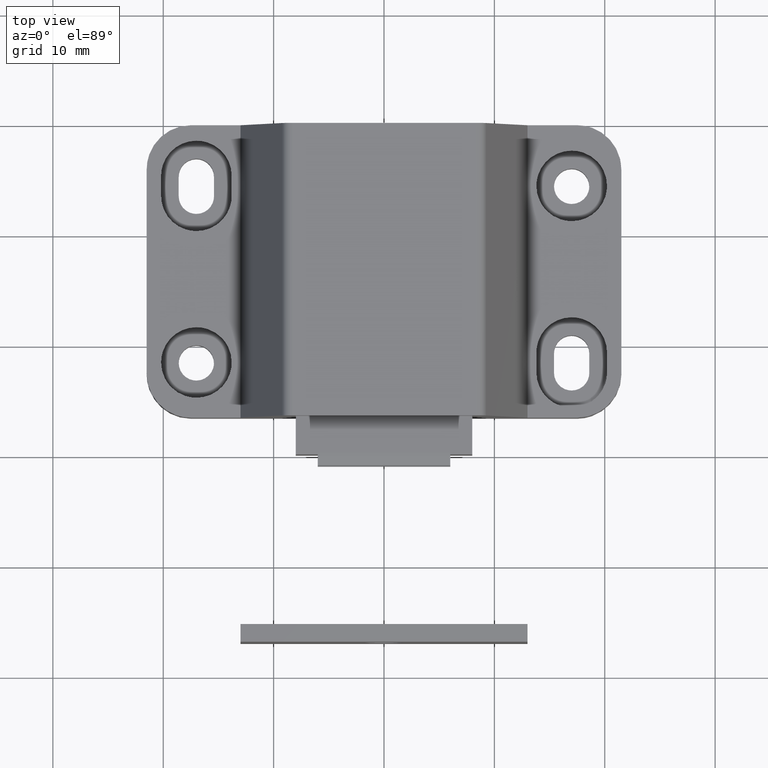
[diagram: clean part render]
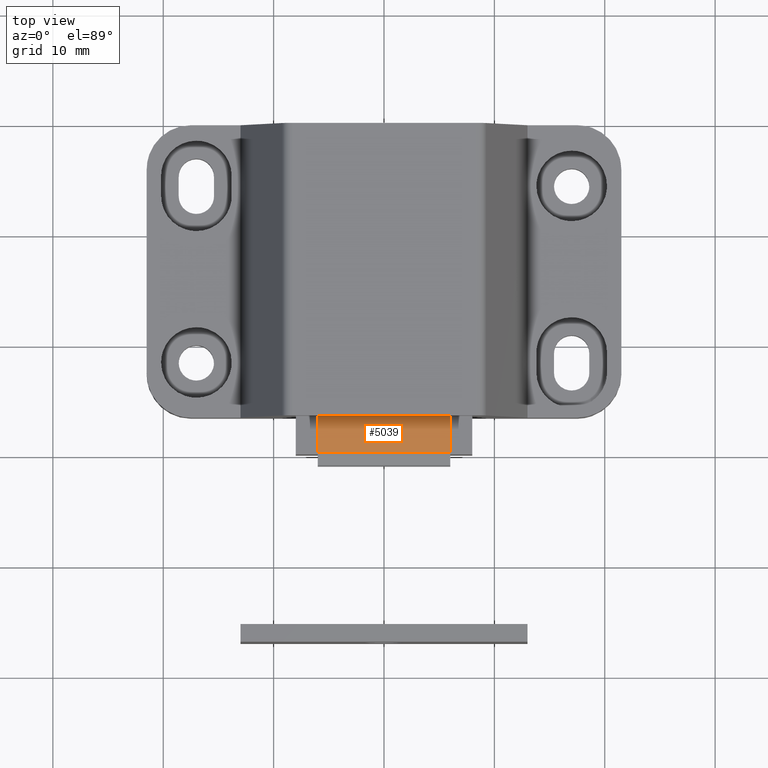
[diagram: same view with one face highlighted and labeled with its STEP entity id]
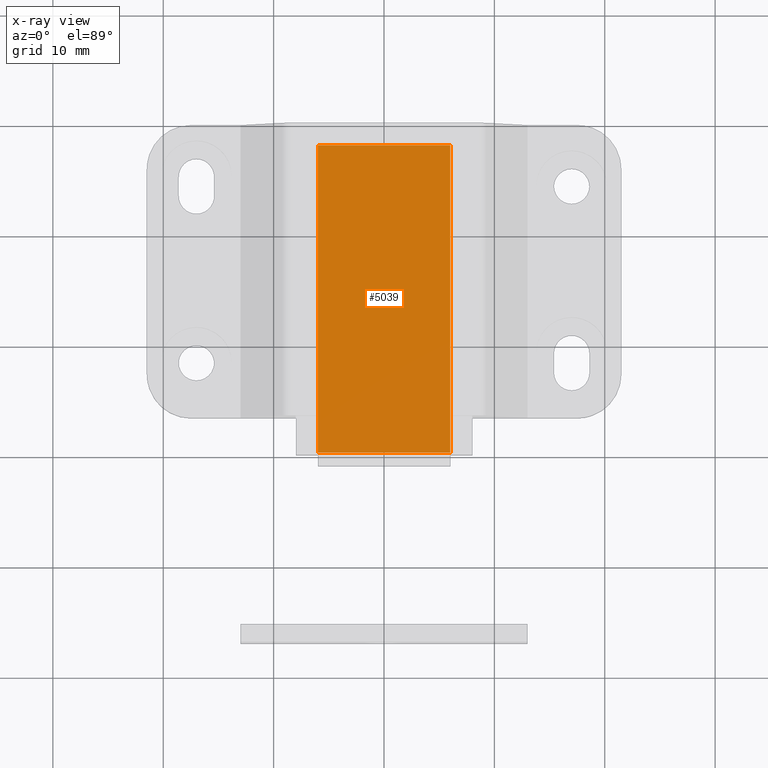
[diagram: x-ray of the same camera — body ghosted, the highlighted face saturated]
A machine part, top view. The second image highlights one B-rep face of the part: STEP entity #5039.
The next image is the same camera in x-ray: the body ghosted, the highlighted face saturated — about 0% of this face is hidden behind the body in this view.
In plain terms, the highlighted face is a freeform B-spline surface patch.
Its self-contained STEP definition (entity closure, byte-faithful):
#4935=CARTESIAN_POINT('',(6.0,-29.842501750058350,16.0));
#4936=VERTEX_POINT('',#4935);
#4944=CARTESIAN_POINT('',(-6.0,-29.842501750058350,16.0));
#4945=VERTEX_POINT('',#4944);
#4946=CARTESIAN_POINT('',(-6.0,-29.842501750058350,16.0));
#4947=CARTESIAN_POINT('',(6.0,-29.842501750058350,16.0));
#4948=QUASI_UNIFORM_CURVE('',1,(#4946,#4947),.UNSPECIFIED.,.F.,.U.);
#4949=EDGE_CURVE('',#4945,#4936,#4948,.T.);
#4969=CARTESIAN_POINT('',(-6.0,-2.0,16.0));
#4970=VERTEX_POINT('',#4969);
#4971=CARTESIAN_POINT('',(-6.0,-2.0,16.0));
#4972=CARTESIAN_POINT('',(-6.0,-29.842501750058350,16.0));
#4973=QUASI_UNIFORM_CURVE('',1,(#4971,#4972),.UNSPECIFIED.,.F.,.U.);
#4974=EDGE_CURVE('',#4970,#4945,#4973,.T.);
#4992=CARTESIAN_POINT('',(6.0,-2.0,16.0));
#4993=VERTEX_POINT('',#4992);
#4994=CARTESIAN_POINT('',(6.0,-2.0,16.0));
#4995=CARTESIAN_POINT('',(6.0,-29.842501750058350,16.0));
#4996=QUASI_UNIFORM_CURVE('',1,(#4994,#4995),.UNSPECIFIED.,.F.,.U.);
#4997=EDGE_CURVE('',#4993,#4936,#4996,.T.);
#5018=CARTESIAN_POINT('',(6.0,-2.0,16.0));
#5019=CARTESIAN_POINT('',(-6.0,-2.0,16.0));
#5020=QUASI_UNIFORM_CURVE('',1,(#5018,#5019),.UNSPECIFIED.,.F.,.U.);
#5021=EDGE_CURVE('',#4993,#4970,#5020,.T.);
#5028=CARTESIAN_POINT('',(-6.599399976741672,-31.233234658509598,16.0));
#5029=CARTESIAN_POINT('',(-6.599399976741672,-0.609266344754664,16.0));
#5030=CARTESIAN_POINT('',(6.599400298606753,-31.233234658509598,16.0));
#5031=CARTESIAN_POINT('',(6.599400298606753,-0.609266344754664,16.0));
#5032=B_SPLINE_SURFACE_WITH_KNOTS('',1,1,((#5028,#5030),(#5029,#5031)),.UNSPECIFIED.,.F.,.F.,.U.,(2,2),(2,2),(0.0,30.623968313754929),(0.0,13.198800275348431),.UNSPECIFIED.);
#5033=ORIENTED_EDGE('',*,*,#4974,.T.);
#5034=ORIENTED_EDGE('',*,*,#4949,.T.);
#5035=ORIENTED_EDGE('',*,*,#4997,.F.);
#5036=ORIENTED_EDGE('',*,*,#5021,.T.);
#5037=EDGE_LOOP('',(#5033,#5034,#5035,#5036));
#5038=FACE_OUTER_BOUND('',#5037,.T.);
#5039=ADVANCED_FACE('',(#5038),#5032,.F.);